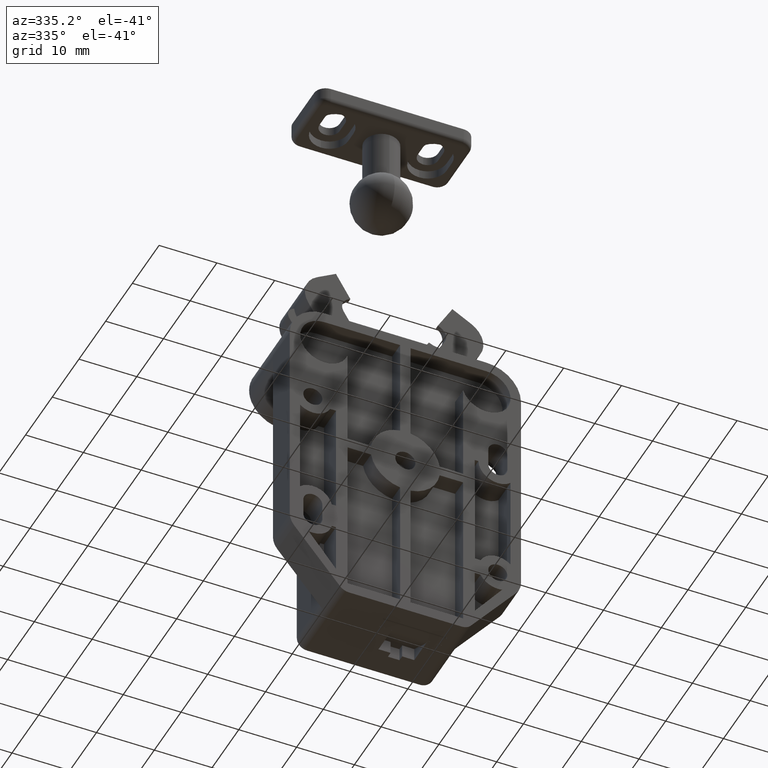
[diagram: clean part render]
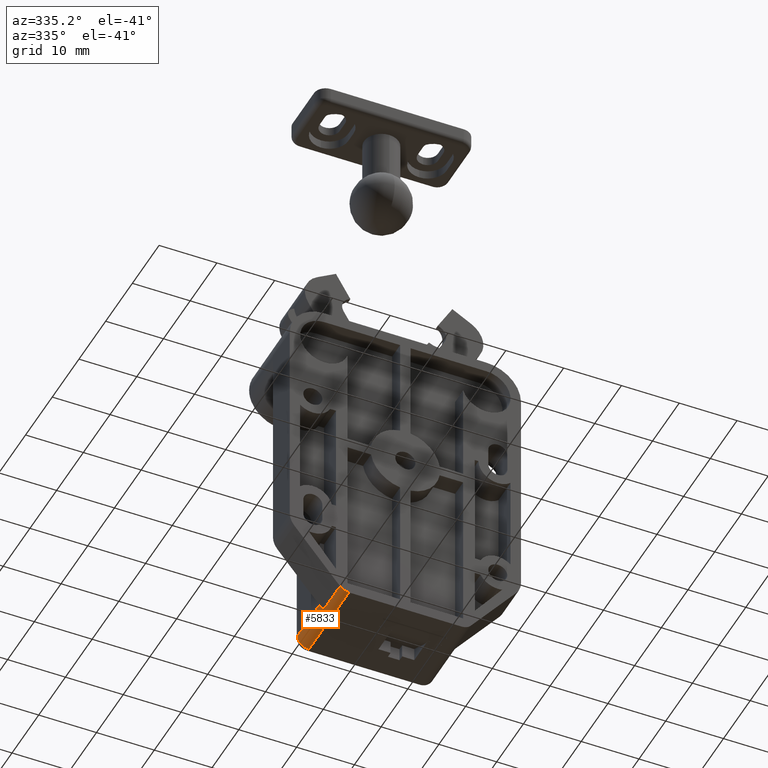
[diagram: same view with one face highlighted and labeled with its STEP entity id]
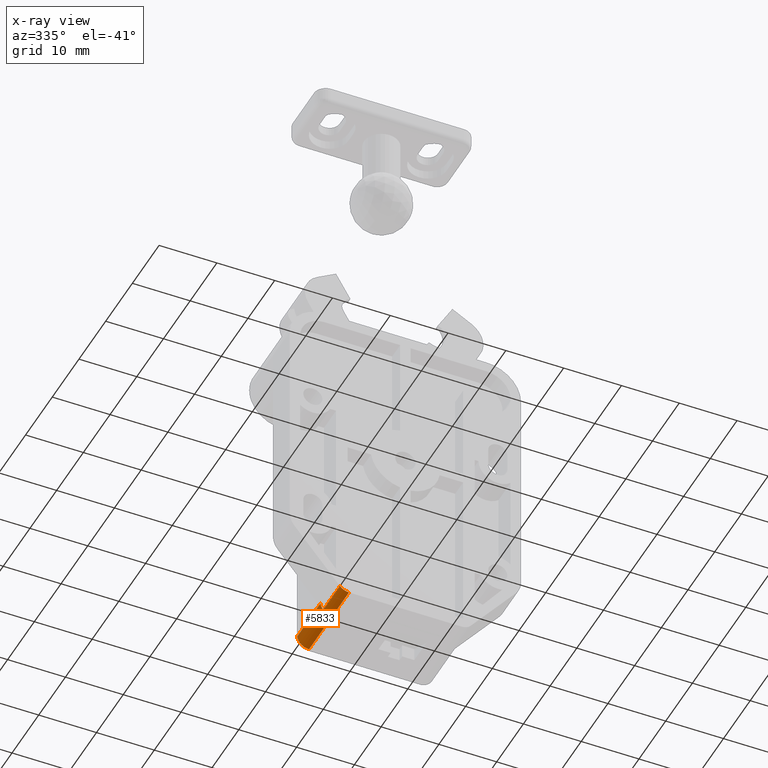
[diagram: x-ray of the same camera — body ghosted, the highlighted face saturated]
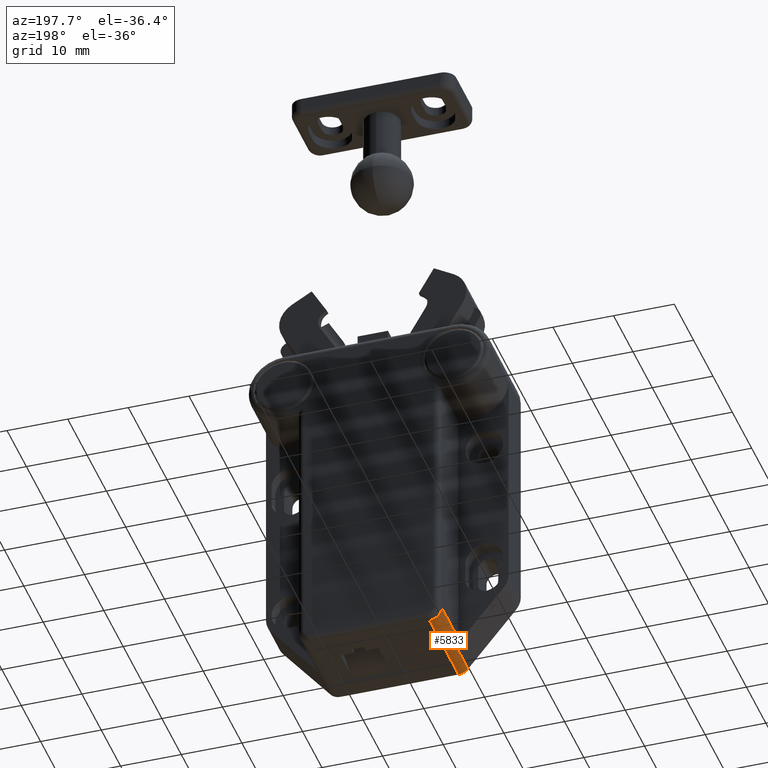
[diagram: same view with one face highlighted and labeled with its STEP entity id]
A machine part, auxiliary view. The second image highlights one B-rep face of the part: STEP entity #5833.
The next image is the same camera in x-ray: the body ghosted, the highlighted face saturated — about 0% of this face is hidden behind the body in this view.
A second angle (auxiliary view) of the same face is appended — the face is thin or edge-on in the first view.
In plain terms, the highlighted cylindrical surface (edge-blend (fillet) strip) has radius 2 mm, axis along (0, -1, -0).
Its self-contained STEP definition (entity closure, byte-faithful):
#207 = CARTESIAN_POINT ( 'NONE',  ( 2.499599999999999200, -9.749999999999765500, 15.00000000000000000 ) ) ;
#212 = EDGE_CURVE ( 'NONE', #4673, #4539, #7132, .T. ) ;
#234 = CIRCLE ( 'NONE', #3711, 2.000000000000029300 ) ;
#295 = CARTESIAN_POINT ( 'NONE',  ( 2.499599999999999200, -9.749999999999765500, 6.300000000000158800 ) ) ;
#326 = EDGE_CURVE ( 'NONE', #573, #3003, #8338, .T. ) ;
#548 = EDGE_CURVE ( 'NONE', #4673, #841, #3127, .T. ) ;
#573 = VERTEX_POINT ( 'NONE', #1582 ) ;
#630 = AXIS2_PLACEMENT_3D ( 'NONE', #4053, #3395, #2016 ) ;
#826 = DIRECTION ( 'NONE',  ( -1.000000000000000000, 0.0000000000000000000, 0.0000000000000000000 ) ) ;
#841 = VERTEX_POINT ( 'NONE', #2603 ) ;
#938 = DIRECTION ( 'NONE',  ( -0.0000000000000000000, -0.0000000000000000000, 1.000000000000000000 ) ) ;
#1045 = EDGE_CURVE ( 'NONE', #4539, #3003, #6791, .T. ) ;
#1217 = ORIENTED_EDGE ( 'NONE', *, *, #548, .T. ) ;
#1582 = CARTESIAN_POINT ( 'NONE',  ( 1.238857129665727600, -11.30258732923529400, 0.0000000000000000000 ) ) ;
#1637 = ORIENTED_EDGE ( 'NONE', *, *, #326, .T. ) ;
#1735 = CARTESIAN_POINT ( 'NONE',  ( 1.238857129665949200, -11.30258732923502100, 6.300000000000158800 ) ) ;
#1916 = EDGE_CURVE ( 'NONE', #5419, #573, #234, .T. ) ;
#2016 = DIRECTION ( 'NONE',  ( -1.000000000000000000, 0.0000000000000000000, 0.0000000000000000000 ) ) ;
#2603 = CARTESIAN_POINT ( 'NONE',  ( 0.4995999999999990400, -9.749999999999751300, 15.00000000000000000 ) ) ;
#2605 = ORIENTED_EDGE ( 'NONE', *, *, #212, .F. ) ;
#2924 = ORIENTED_EDGE ( 'NONE', *, *, #1916, .T. ) ;
#3003 = VERTEX_POINT ( 'NONE', #1735 ) ;
#3127 = CIRCLE ( 'NONE', #5865, 2.000000000000000000 ) ;
#3228 = CARTESIAN_POINT ( 'NONE',  ( 2.499600000000025800, -9.750000000000199000, 0.0000000000000000000 ) ) ;
#3395 = DIRECTION ( 'NONE',  ( -0.0000000000000000000, -0.0000000000000000000, -1.000000000000000000 ) ) ;
#3479 = FACE_OUTER_BOUND ( 'NONE', #4675, .T. ) ;
#3601 = CARTESIAN_POINT ( 'NONE',  ( 0.4995999999999958800, -9.750000000000199000, 0.0000000000000000000 ) ) ;
#3649 = AXIS2_PLACEMENT_3D ( 'NONE', #295, #6132, #6741 ) ;
#3689 = CARTESIAN_POINT ( 'NONE',  ( 2.499600000000013800, -11.74999999999976600, 15.00000000000000000 ) ) ;
#3711 = AXIS2_PLACEMENT_3D ( 'NONE', #3228, #8089, #3923 ) ;
#3879 = VECTOR ( 'NONE', #7983, 1000.000000000000000 ) ;
#3923 = DIRECTION ( 'NONE',  ( -1.000000000000000000, 0.0000000000000000000, 0.0000000000000000000 ) ) ;
#4053 = CARTESIAN_POINT ( 'NONE',  ( 2.499599999999999200, -9.749999999999765500, 16.00000000000000000 ) ) ;
#4096 = VECTOR ( 'NONE', #6728, 1000.000000000000000 ) ;
#4539 = VERTEX_POINT ( 'NONE', #8643 ) ;
#4635 = VECTOR ( 'NONE', #938, 1000.000000000000000 ) ;
#4673 = VERTEX_POINT ( 'NONE', #3689 ) ;
#4675 = EDGE_LOOP ( 'NONE', ( #8353, #2605, #1217, #6715, #2924, #1637 ) ) ;
#5249 = CARTESIAN_POINT ( 'NONE',  ( 2.499600000000013800, -11.74999999999976600, 16.00000000000000000 ) ) ;
#5419 = VERTEX_POINT ( 'NONE', #3601 ) ;
#5686 = CARTESIAN_POINT ( 'NONE',  ( 1.238857129665727600, -11.30258732923529400, -0.001024999999999984300 ) ) ;
#5833 = ADVANCED_FACE ( 'NONE', ( #3479 ), #6742, .T. ) ;
#5865 = AXIS2_PLACEMENT_3D ( 'NONE', #207, #7717, #826 ) ;
#6132 = DIRECTION ( 'NONE',  ( -0.0000000000000000000, -0.0000000000000000000, -1.000000000000000000 ) ) ;
#6715 = ORIENTED_EDGE ( 'NONE', *, *, #8056, .T. ) ;
#6728 = DIRECTION ( 'NONE',  ( -0.0000000000000000000, -0.0000000000000000000, -1.000000000000000000 ) ) ;
#6741 = DIRECTION ( 'NONE',  ( 1.000000000000000000, 0.0000000000000000000, 0.0000000000000000000 ) ) ;
#6742 = CYLINDRICAL_SURFACE ( 'NONE', #630, 2.000000000000000000 ) ;
#6791 = CIRCLE ( 'NONE', #3649, 2.000000000000000400 ) ;
#7132 = LINE ( 'NONE', #5249, #3879 ) ;
#7717 = DIRECTION ( 'NONE',  ( -0.0000000000000000000, -0.0000000000000000000, -1.000000000000000000 ) ) ;
#7790 = LINE ( 'NONE', #8806, #4096 ) ;
#7983 = DIRECTION ( 'NONE',  ( -0.0000000000000000000, -0.0000000000000000000, -1.000000000000000000 ) ) ;
#8056 = EDGE_CURVE ( 'NONE', #841, #5419, #7790, .T. ) ;
#8089 = DIRECTION ( 'NONE',  ( -0.0000000000000000000, -0.0000000000000000000, 1.000000000000000000 ) ) ;
#8338 = LINE ( 'NONE', #5686, #4635 ) ;
#8353 = ORIENTED_EDGE ( 'NONE', *, *, #1045, .F. ) ;
#8643 = CARTESIAN_POINT ( 'NONE',  ( 2.499600000000013800, -11.74999999999976600, 6.300000000000158800 ) ) ;
#8806 = CARTESIAN_POINT ( 'NONE',  ( 0.4995999999999990400, -9.749999999999751300, 16.00000000000000000 ) ) ;